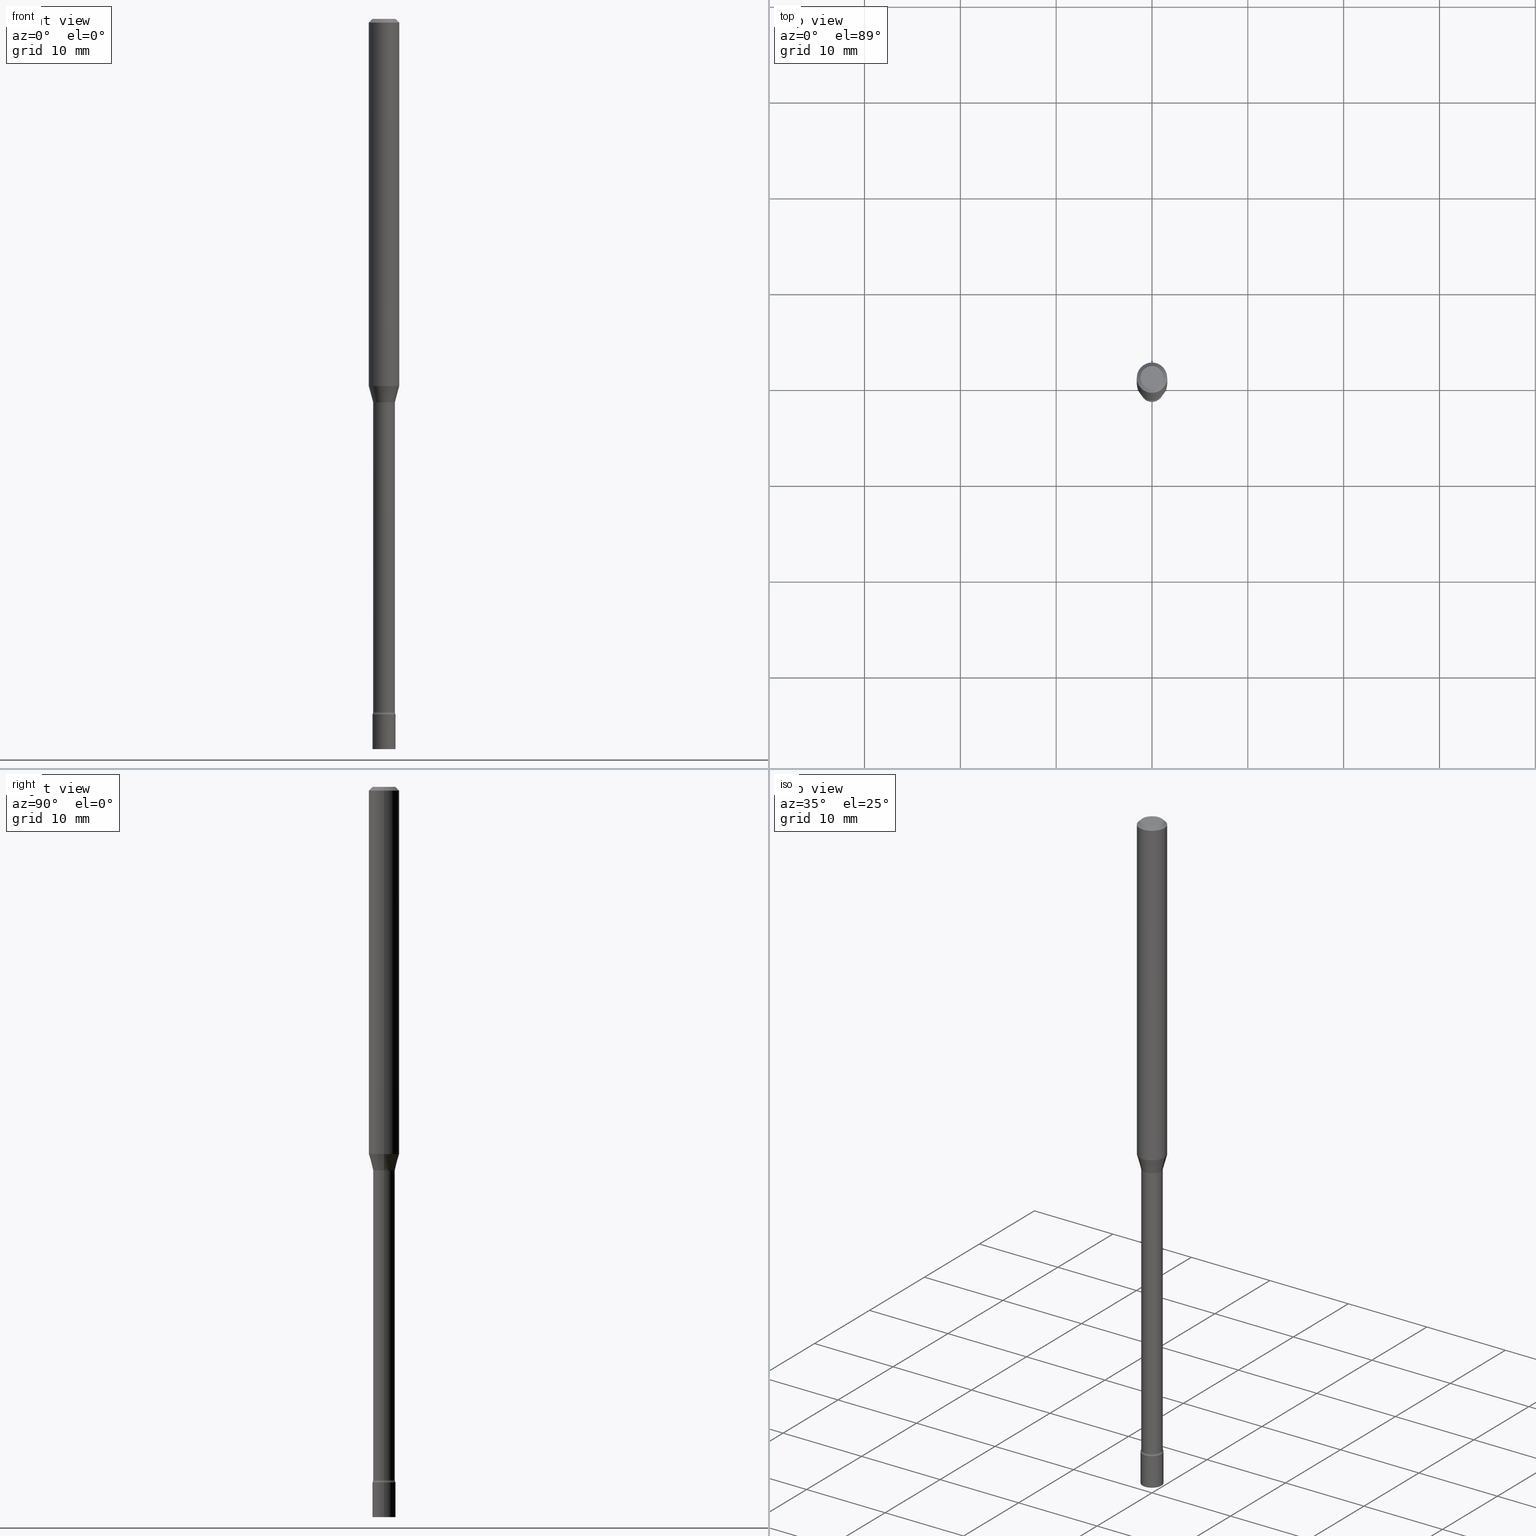
[diagram: canonical four-view strip — front | top / right | iso, engineering-drawing reading convention]
A machine part, canonical four-view strip (front | top / right | iso — engineering-drawing reading convention). The complete STEP part file that produces these views, byte-faithful:
ISO-10303-21;
HEADER;
FILE_DESCRIPTION (( 'STEP AP203' ),
    '1' );
FILE_NAME ('09750.STEP',
    '2024-03-09T01:38:15',
    ( '' ),
    ( '' ),
    'SwSTEP 2.0',
    'SolidWorks 2023',
    '' );
FILE_SCHEMA (( 'CONFIG_CONTROL_DESIGN' ));
ENDSEC;

DATA;
#1 = DIRECTION ( 'NONE',  ( 1.000000000000000000, -6.982962677686266711E-15, 4.876176775795935793E-29 ) ) ;
#2 = VECTOR ( 'NONE', #70, 39.37007874015748143 ) ;
#3 = APPROVAL_DATE_TIME ( #361, #476 ) ;
#4 = ADVANCED_FACE ( 'NONE', ( #273 ), #167, .T. ) ;
#5 = DIRECTION ( 'NONE',  ( -2.445468806185136597E-29, 3.491481338843145583E-15, 1.000000000000000000 ) ) ;
#6 = LINE ( 'NONE', #321, #9 ) ;
#7 = DIRECTION ( 'NONE',  ( -2.445468806185136597E-29, 3.491481338843145583E-15, 1.000000000000000000 ) ) ;
#8 = EDGE_CURVE ( 'NONE', #225, #56, #464, .T. ) ;
#9 = VECTOR ( 'NONE', #483, 39.37007874015748143 ) ;
#10 = AXIS2_PLACEMENT_3D ( 'NONE', #445, #135, #331 ) ;
#11 = FACE_OUTER_BOUND ( 'NONE', #391, .T. ) ;
#12 = ORIENTED_EDGE ( 'NONE', *, *, #455, .T. ) ;
#13 = CALENDAR_DATE ( 2024, 8, 3 ) ;
#14 = DIMENSIONAL_EXPONENTS ( 1.000000000000000000, 0.000000000000000000, 0.000000000000000000, 0.000000000000000000, 0.000000000000000000, 0.000000000000000000, 0.000000000000000000 ) ;
#15 = CARTESIAN_POINT ( 'NONE',  ( 0.04749999999999999362, -1.030685291226496570E-14, -2.857000000000000206 ) ) ;
#16 = DIRECTION ( 'NONE',  ( -2.445468806185136597E-29, 3.491481338843145583E-15, 1.000000000000000000 ) ) ;
#17 = PERSON_AND_ORGANIZATION ( #261, #109 ) ;
#18 = LENGTH_MEASURE_WITH_UNIT ( LENGTH_MEASURE( 0.02539999999999999897 ), #339 );
#19 = DIRECTION ( 'NONE',  ( 1.000000000000000000, -6.982962677686258033E-15, 0.000000000000000000 ) ) ;
#20 = VECTOR ( 'NONE', #442, 39.37007874015748143 ) ;
#21 = AXIS2_PLACEMENT_3D ( 'NONE', #256, #96, #212 ) ;
#22 =( CONVERSION_BASED_UNIT ( 'INCH', #18 ) LENGTH_UNIT ( ) NAMED_UNIT ( #14 ) );
#23 = CARTESIAN_POINT ( 'NONE',  ( -0.04464999999999999525, -7.407956464872171030E-15, -1.576974787463811367 ) ) ;
#24 = ORIENTED_EDGE ( 'NONE', *, *, #156, .T. ) ;
#25 = DIRECTION ( 'NONE',  ( -0.7071067811865475727, 2.468850131082257455E-15, -0.7071067811865474617 ) ) ;
#26 = DIRECTION ( 'NONE',  ( 1.000000000000000000, -6.982962677686265922E-15, 4.876176775795935793E-29 ) ) ;
#27 = LINE ( 'NONE', #183, #2 ) ;
#28 = ORIENTED_EDGE ( 'NONE', *, *, #239, .T. ) ;
#29 = EDGE_CURVE ( 'NONE', #434, #263, #116, .T. ) ;
#30 = AXIS2_PLACEMENT_3D ( 'NONE', #58, #46, #365 ) ;
#31 = DIRECTION ( 'NONE',  ( 1.000000000000000000, -6.982962677686266711E-15, 4.876176775795935793E-29 ) ) ;
#32 = LOCAL_TIME ( 20, 38, 15.00000000000000000, #505 ) ;
#33 = ORIENTED_EDGE ( 'NONE', *, *, #248, .F. ) ;
#34 = CARTESIAN_POINT ( 'NONE',  ( 3.688703312822403252E-29, -5.266490723036150477E-15, -1.508382893084896148 ) ) ;
#35 = ORIENTED_EDGE ( 'NONE', *, *, #418, .F. ) ;
#36 = ORIENTED_EDGE ( 'NONE', *, *, #328, .F. ) ;
#37 = EDGE_CURVE ( 'NONE', #225, #263, #6, .T. ) ;
#38 = ORIENTED_EDGE ( 'NONE', *, *, #462, .F. ) ;
#39 = ADVANCED_FACE ( 'NONE', ( #82 ), #45, .F. ) ;
#40 = DIRECTION ( 'NONE',  ( -1.000000000000000000, 6.982962677686265922E-15, -4.876176775795935793E-29 ) ) ;
#41 = DATE_TIME_ROLE ( 'creation_date' ) ;
#42 = CARTESIAN_POINT ( 'NONE',  ( 3.856442650883186298E-29, -5.505978042256032480E-15, -1.576974787463811367 ) ) ;
#43 = AXIS2_PLACEMENT_3D ( 'NONE', #459, #7, #282 ) ;
#44 = CARTESIAN_POINT ( 'NONE',  ( -0.06250000000000000000, -4.822401513186087072E-15, -1.508382893084896148 ) ) ;
#45 = PLANE ( 'NONE',  #506 ) ;
#46 = DIRECTION ( 'NONE',  ( -2.445468806185136597E-29, 3.491481338843145583E-15, 1.000000000000000000 ) ) ;
#47 = VERTEX_POINT ( 'NONE', #165 ) ;
#48 = CLOSED_SHELL ( 'NONE', ( #302, #366, #472, #78 ) ) ;
#49 = CIRCLE ( 'NONE', #441, 0.04749999999999999362 ) ;
#50 = COORDINATED_UNIVERSAL_TIME_OFFSET ( 5, 0, .BEHIND. ) ;
#51 = TOROIDAL_SURFACE ( 'NONE', #380, 0.05965000000000016817, 0.01499999999999997689 ) ;
#52 = DIRECTION ( 'NONE',  ( 0.000000000000000000, 0.000000000000000000, 1.000000000000000000 ) ) ;
#53 = DIRECTION ( 'NONE',  ( 1.000000000000000000, -6.982962677686279332E-15, 0.000000000000000000 ) ) ;
#54 = CARTESIAN_POINT ( 'NONE',  ( 3.856442650883186298E-29, -5.505978042256032480E-15, -1.576974787463811367 ) ) ;
#55 = CARTESIAN_POINT ( 'NONE',  ( 3.846948642364512994E-29, -5.492423114264342682E-15, -1.573092501787273445 ) ) ;
#56 = VERTEX_POINT ( 'NONE', #275 ) ;
#57 = APPROVAL_ROLE ( '' ) ;
#58 = CARTESIAN_POINT ( 'NONE',  ( 3.688703312822403252E-29, -5.266490723036150477E-15, -1.508382893084896148 ) ) ;
#59 = ORIENTED_EDGE ( 'NONE', *, *, #447, .T. ) ;
#60 = EDGE_CURVE ( 'NONE', #141, #47, #314, .T. ) ;
#61 = AXIS2_PLACEMENT_3D ( 'NONE', #34, #229, #392 ) ;
#62 = PLANE ( 'NONE',  #244 ) ;
#63 = PRODUCT_DEFINITION ( 'UNKNOWN', '', #203, #327 ) ;
#64 = AXIS2_PLACEMENT_3D ( 'NONE', #413, #52, #488 ) ;
#65 = CARTESIAN_POINT ( 'NONE',  ( 7.070806723891919892E-46, -1.009523804376275404E-31, -2.891391092786900929E-17 ) ) ;
#66 = CARTESIAN_POINT ( 'NONE',  ( 6.965192939722619373E-29, -9.944449550522084107E-15, -2.848203551853162985 ) ) ;
#67 = CARTESIAN_POINT ( 'NONE',  ( 7.336406418555409790E-29, -1.047444401652943635E-14, -3.000000000000000444 ) ) ;
#68 = ADVANCED_FACE ( 'NONE', ( #90 ), #322, .F. ) ;
#69 = ORIENTED_EDGE ( 'NONE', *, *, #8, .T. ) ;
#70 = DIRECTION ( 'NONE',  ( -2.445468806185136877E-29, 3.491481338843145188E-15, 1.000000000000000000 ) ) ;
#71 = EDGE_LOOP ( 'NONE', ( #374, #69, #492, #477 ) ) ;
#72 = AXIS2_PLACEMENT_3D ( 'NONE', #153, #426, #432 ) ;
#73 = CARTESIAN_POINT ( 'NONE',  ( 3.668203209277712094E-31, -5.237222008264728876E-17, -0.01500000000000003067 ) ) ;
#74 =( GEOMETRIC_REPRESENTATION_CONTEXT ( 3 ) GLOBAL_UNCERTAINTY_ASSIGNED_CONTEXT ( ( #237 ) ) GLOBAL_UNIT_ASSIGNED_CONTEXT ( ( #22, #446, #503 ) ) REPRESENTATION_CONTEXT ( 'NONE', 'WORKASPACE' ) );
#75 = ORIENTED_EDGE ( 'NONE', *, *, #60, .T. ) ;
#76 = CARTESIAN_POINT ( 'NONE',  ( 0.04465000000000009933, -3.117892835586925182E-16, 2.177212930392890079E-30 ) ) ;
#77 = EDGE_LOOP ( 'NONE', ( #187, #433 ) ) ;
#78 = ADVANCED_FACE ( 'NONE', ( #200 ), #363, .T. ) ;
#79 = ORIENTED_EDGE ( 'NONE', *, *, #494, .T. ) ;
#80 = VECTOR ( 'NONE', #104, 39.37007874015748143 ) ;
#81 = DIRECTION ( 'NONE',  ( 1.000000000000000000, -6.982962677686272233E-15, 4.883557194083114583E-29 ) ) ;
#82 = FACE_OUTER_BOUND ( 'NONE', #77, .T. ) ;
#83 = ADVANCED_FACE ( 'NONE', ( #243 ), #234, .T. ) ;
#84 = DIRECTION ( 'NONE',  ( 1.000000000000000000, -6.982962677686258822E-15, 0.000000000000000000 ) ) ;
#85 = APPROVAL ( #285, 'UNSPECIFIED' ) ;
#86 = CIRCLE ( 'NONE', #258, 0.04749999999999999362 ) ;
#87 = DIRECTION ( 'NONE',  ( 7.105427357601001859E-15, 1.000000000000000000, -3.491481338843145583E-15 ) ) ;
#88 = AXIS2_PLACEMENT_3D ( 'NONE', #257, #100, #137 ) ;
#89 = EDGE_CURVE ( 'NONE', #296, #112, #161, .T. ) ;
#90 = FACE_OUTER_BOUND ( 'NONE', #198, .T. ) ;
#91 = EDGE_CURVE ( 'NONE', #337, #460, #86, .T. ) ;
#92 = APPROVAL ( #453, 'UNSPECIFIED' ) ;
#93 = CARTESIAN_POINT ( 'NONE',  ( 6.986704379270935831E-29, -9.975162185074867400E-15, -2.857000000000000206 ) ) ;
#94 = EDGE_LOOP ( 'NONE', ( #351, #24, #114, #393 ) ) ;
#95 = DIRECTION ( 'NONE',  ( 2.438088387897960049E-29, -3.491481338843145188E-15, -1.000000000000000000 ) ) ;
#96 = DIRECTION ( 'NONE',  ( -6.982962677686266711E-15, -1.000000000000000000, 3.491481338843145583E-15 ) ) ;
#97 = VERTEX_POINT ( 'NONE', #129 ) ;
#98 = AXIS2_PLACEMENT_3D ( 'NONE', #489, #350, #181 ) ;
#99 = CARTESIAN_POINT ( 'NONE',  ( 0.06250000000000000000, -4.811533449433680977E-16, -0.01500000000000003067 ) ) ;
#100 = DIRECTION ( 'NONE',  ( 2.445468806185136597E-29, -3.491481338843145583E-15, -1.000000000000000000 ) ) ;
#101 = APPLICATION_PROTOCOL_DEFINITION ( 'international standard', 'config_control_design', 1994, #219 ) ;
#102 = DIRECTION ( 'NONE',  ( 1.000000000000000000, -6.982962677686258033E-15, 0.000000000000000000 ) ) ;
#103 = ADVANCED_FACE ( 'NONE', ( #236 ), #367, .F. ) ;
#104 = DIRECTION ( 'NONE',  ( 0.7071067811865475727, -7.319954787623256045E-15, -0.7071067811865474617 ) ) ;
#105 = CARTESIAN_POINT ( 'NONE',  ( 3.846948642364512994E-29, -5.492423114264342682E-15, -1.573092501787273445 ) ) ;
#106 = VERTEX_POINT ( 'NONE', #278 ) ;
#107 = AXIS2_PLACEMENT_3D ( 'NONE', #180, #249, #452 ) ;
#108 = DIRECTION ( 'NONE',  ( 1.000000000000000000, -6.982962677686258822E-15, 0.000000000000000000 ) ) ;
#109 = ORGANIZATION ( 'UNSPECIFIED', 'UNSPECIFIED', '' ) ;
#110 = EDGE_CURVE ( 'NONE', #296, #263, #317, .T. ) ;
#111 = DIRECTION ( 'NONE',  ( -2.445468806185136877E-29, 3.491481338843145188E-15, 1.000000000000000000 ) ) ;
#112 = VERTEX_POINT ( 'NONE', #44 ) ;
#113 = DIRECTION ( 'NONE',  ( -2.445468806185136597E-29, 3.491481338843145583E-15, 1.000000000000000000 ) ) ;
#114 = ORIENTED_EDGE ( 'NONE', *, *, #406, .F. ) ;
#115 = ORIENTED_EDGE ( 'NONE', *, *, #335, .T. ) ;
#116 = CIRCLE ( 'NONE', #240, 0.04464999999999999525 ) ;
#117 = CLOSED_SHELL ( 'NONE', ( #103, #404, #171, #182, #291, #150, #166, #83, #4, #482, #39, #502, #359, #68 ) ) ;
#118 = AXIS2_PLACEMENT_3D ( 'NONE', #148, #305, #31 ) ;
#119 = DIRECTION ( 'NONE',  ( 1.000000000000000000, -6.982962677686261977E-15, 0.000000000000000000 ) ) ;
#120 = ORIENTED_EDGE ( 'NONE', *, *, #418, .T. ) ;
#121 = ORIENTED_EDGE ( 'NONE', *, *, #110, .T. ) ;
#122 = DIRECTION ( 'NONE',  ( -2.445468806185136597E-29, 3.491481338843145583E-15, 1.000000000000000000 ) ) ;
#123 = AXIS2_PLACEMENT_3D ( 'NONE', #480, #405, #439 ) ;
#124 = AXIS2_PLACEMENT_3D ( 'NONE', #382, #186, #270 ) ;
#125 = DIRECTION ( 'NONE',  ( -2.445468806185136597E-29, 3.491481338843145583E-15, 1.000000000000000000 ) ) ;
#126 = AXIS2_PLACEMENT_3D ( 'NONE', #495, #419, #144 ) ;
#127 = ORIENTED_EDGE ( 'NONE', *, *, #328, .T. ) ;
#128 = PRODUCT_RELATED_PRODUCT_CATEGORY ( 'detail', '', ( #444 ) ) ;
#129 = CARTESIAN_POINT ( 'NONE',  ( 0.04749999999999997280, -1.030685291226496570E-14, -2.857000000000000206 ) ) ;
#130 = CARTESIAN_POINT ( 'NONE',  ( 0.04516111260566398056, -5.807781478072481099E-15, -1.573092501787273445 ) ) ;
#131 = AXIS2_PLACEMENT_3D ( 'NONE', #421, #207, #53 ) ;
#132 = CARTESIAN_POINT ( 'NONE',  ( 0.04516111260566398056, -5.807781478072481099E-15, -1.573092501787273445 ) ) ;
#133 = EDGE_CURVE ( 'NONE', #230, #394, #389, .T. ) ;
#134 = MECHANICAL_CONTEXT ( 'NONE', #357, 'mechanical' ) ;
#135 = DIRECTION ( 'NONE',  ( -2.445468806185136597E-29, 3.491481338843145583E-15, 1.000000000000000000 ) ) ;
#136 = ORIENTED_EDGE ( 'NONE', *, *, #423, .F. ) ;
#137 = DIRECTION ( 'NONE',  ( -1.000000000000000000, 6.982962677686266711E-15, 0.000000000000000000 ) ) ;
#138 = ORIENTED_EDGE ( 'NONE', *, *, #515, .F. ) ;
#139 = CONICAL_SURFACE ( 'NONE', #323, 0.04516111260566398056, 0.2617993877991502960 ) ;
#140 = CARTESIAN_POINT ( 'NONE',  ( 0.04749999999999999362, -4.035134999187579609E-16, -2.891391092786643933E-17 ) ) ;
#141 = VERTEX_POINT ( 'NONE', #132 ) ;
#142 = FACE_OUTER_BOUND ( 'NONE', #208, .T. ) ;
#143 = DIRECTION ( 'NONE',  ( 1.000000000000000000, -6.982962677686267499E-15, 4.876681293081646444E-29 ) ) ;
#144 = DIRECTION ( 'NONE',  ( 1.000000000000000000, -6.982962677686267499E-15, 4.876176775795935793E-29 ) ) ;
#145 = CARTESIAN_POINT ( 'NONE',  ( 0.06250000000000000000, -4.888073874380389458E-16, -0.01500000000000003067 ) ) ;
#146 = EDGE_LOOP ( 'NONE', ( #498, #475, #250, #28 ) ) ;
#147 = AXIS2_PLACEMENT_3D ( 'NONE', #65, #172, #143 ) ;
#148 = CARTESIAN_POINT ( 'NONE',  ( 0.000000000000000000, 0.000000000000000000, 0.000000000000000000 ) ) ;
#149 = ORIENTED_EDGE ( 'NONE', *, *, #383, .T. ) ;
#150 = ADVANCED_FACE ( 'NONE', ( #173 ), #197, .T. ) ;
#151 = CARTESIAN_POINT ( 'NONE',  ( -0.04749999999999999362, -9.887295301316104383E-15, -2.857000000000000206 ) ) ;
#152 = ORIENTED_EDGE ( 'NONE', *, *, #245, .T. ) ;
#153 = CARTESIAN_POINT ( 'NONE',  ( 0.000000000000000000, 0.000000000000000000, 0.000000000000000000 ) ) ;
#154 = EDGE_LOOP ( 'NONE', ( #36, #370 ) ) ;
#155 = CIRCLE ( 'NONE', #479, 0.04516111260566398056 ) ;
#156 = EDGE_CURVE ( 'NONE', #112, #299, #448, .T. ) ;
#157 = ORIENTED_EDGE ( 'NONE', *, *, #89, .T. ) ;
#158 = CC_DESIGN_PERSON_AND_ORGANIZATION_ASSIGNMENT ( #461, #215, ( #203 ) ) ;
#159 = DIRECTION ( 'NONE',  ( 1.000000000000000000, -6.982962677686265922E-15, 4.876176775795935793E-29 ) ) ;
#160 = EDGE_CURVE ( 'NONE', #296, #141, #155, .T. ) ;
#161 = LINE ( 'NONE', #164, #347 ) ;
#162 = CONICAL_SURFACE ( 'NONE', #88, 0.06250000000000000000, 0.7853981633974483900 ) ;
#163 = DIRECTION ( 'NONE',  ( 1.000000000000000000, -6.982962677686272233E-15, 4.883557194083114583E-29 ) ) ;
#164 = CARTESIAN_POINT ( 'NONE',  ( -0.04516111260566398056, -5.171534109256358073E-15, -1.573092501787273445 ) ) ;
#165 = CARTESIAN_POINT ( 'NONE',  ( 0.06250000000000000000, -5.702925890391542147E-15, -1.508382893084896148 ) ) ;
#166 = ADVANCED_FACE ( 'NONE', ( #501 ), #139, .T. ) ;
#167 = CONICAL_SURFACE ( 'NONE', #123, 0.06250000000000000000, 0.7853981633974483900 ) ;
#168 = FACE_OUTER_BOUND ( 'NONE', #94, .T. ) ;
#169 = SHAPE_DEFINITION_REPRESENTATION ( #284, #254 ) ;
#170 = CYLINDRICAL_SURFACE ( 'NONE', #98, 0.04749999999999999362 ) ;
#171 = ADVANCED_FACE ( 'NONE', ( #417 ), #274, .F. ) ;
#172 = DIRECTION ( 'NONE',  ( -2.445468806185136597E-29, 3.491481338843145583E-15, 1.000000000000000000 ) ) ;
#173 = FACE_OUTER_BOUND ( 'NONE', #388, .T. ) ;
#174 = AXIS2_PLACEMENT_3D ( 'NONE', #246, #318, #40 ) ;
#175 = AXIS2_PLACEMENT_3D ( 'NONE', #264, #387, #428 ) ;
#176 = AXIS2_PLACEMENT_3D ( 'NONE', #93, #16, #286 ) ;
#177 = PERSON_AND_ORGANIZATION ( #261, #109 ) ;
#178 = CC_DESIGN_APPROVAL ( #476, ( #203 ) ) ;
#179 = LINE ( 'NONE', #99, #80 ) ;
#180 = CARTESIAN_POINT ( 'NONE',  ( 6.986704379270935831E-29, -9.975162185074867400E-15, -2.857000000000000206 ) ) ;
#181 = DIRECTION ( 'NONE',  ( 1.000000000000000000, -6.982962677686267499E-15, 4.876176775795935793E-29 ) ) ;
#182 = ADVANCED_FACE ( 'NONE', ( #414 ), #162, .T. ) ;
#183 = CARTESIAN_POINT ( 'NONE',  ( 0.04749999999999999362, -3.316907271900976589E-16, 2.316183968503069081E-30 ) ) ;
#184 = EDGE_LOOP ( 'NONE', ( #280, #425, #512, #228 ) ) ;
#185 = AXIS2_PLACEMENT_3D ( 'NONE', #298, #113, #390 ) ;
#186 = DIRECTION ( 'NONE',  ( -2.445468806185136597E-29, 3.491481338843145583E-15, 1.000000000000000000 ) ) ;
#187 = ORIENTED_EDGE ( 'NONE', *, *, #239, .F. ) ;
#188 = CYLINDRICAL_SURFACE ( 'NONE', #72, 0.04465000000000009933 ) ;
#189 = ORIENTED_EDGE ( 'NONE', *, *, #368, .T. ) ;
#190 = ORIENTED_EDGE ( 'NONE', *, *, #368, .F. ) ;
#191 = CIRCLE ( 'NONE', #185, 0.04516111260566398056 ) ;
#192 = CC_DESIGN_APPROVAL ( #85, ( #63 ) ) ;
#193 = ORIENTED_EDGE ( 'NONE', *, *, #91, .F. ) ;
#194 = DIRECTION ( 'NONE',  ( 7.105427357601001859E-15, 1.000000000000000000, -3.491481338843145583E-15 ) ) ;
#195 = CARTESIAN_POINT ( 'NONE',  ( 3.856442650883186298E-29, -5.505978042256032480E-15, -1.576974787463811367 ) ) ;
#196 = APPROVAL_STATUS ( 'not_yet_approved' ) ;
#197 = CONICAL_SURFACE ( 'NONE', #311, 0.04516111260566398056, 0.2617993877991502960 ) ;
#198 = EDGE_LOOP ( 'NONE', ( #309, #35, #152, #292 ) ) ;
#199 = EDGE_CURVE ( 'NONE', #47, #112, #349, .T. ) ;
#200 = FACE_OUTER_BOUND ( 'NONE', #154, .T. ) ;
#201 = ORIENTED_EDGE ( 'NONE', *, *, #245, .F. ) ;
#202 = DIRECTION ( 'NONE',  ( 1.000000000000000000, -6.982962677686261977E-15, 0.000000000000000000 ) ) ;
#203 = PRODUCT_DEFINITION_FORMATION_WITH_SPECIFIED_SOURCE ( 'ANY', '', #444, .NOT_KNOWN. ) ;
#204 = DIRECTION ( 'NONE',  ( -2.445468806185136597E-29, 3.491481338843145583E-15, 1.000000000000000000 ) ) ;
#205 = CC_DESIGN_DATE_AND_TIME_ASSIGNMENT ( #338, #457, ( #451 ) ) ;
#206 = DIRECTION ( 'NONE',  ( -2.445468806185136597E-29, 3.491481338843145583E-15, 1.000000000000000000 ) ) ;
#207 = DIRECTION ( 'NONE',  ( -6.982962677686266711E-15, -1.000000000000000000, 3.491481338843145583E-15 ) ) ;
#208 = EDGE_LOOP ( 'NONE', ( #268, #353 ) ) ;
#209 = EDGE_CURVE ( 'NONE', #47, #408, #456, .T. ) ;
#210 = CALENDAR_DATE ( 2024, 8, 3 ) ;
#211 = COORDINATED_UNIVERSAL_TIME_OFFSET ( 5, 0, .BEHIND. ) ;
#212 = DIRECTION ( 'NONE',  ( 1.000000000000000000, -6.982962677686255667E-15, 0.000000000000000000 ) ) ;
#213 = ORIENTED_EDGE ( 'NONE', *, *, #383, .F. ) ;
#214 = AXIS2_PLACEMENT_3D ( 'NONE', #352, #511, #513 ) ;
#215 = PERSON_AND_ORGANIZATION_ROLE ( 'design_supplier' ) ;
#216 = DIRECTION ( 'NONE',  ( 1.000000000000000000, -6.982962677686249356E-15, 0.000000000000000000 ) ) ;
#217 = CC_DESIGN_PERSON_AND_ORGANIZATION_ASSIGNMENT ( #454, #371, ( #444 ) ) ;
#218 = DIRECTION ( 'NONE',  ( -2.445468806185136597E-29, 3.491481338843145583E-15, 1.000000000000000000 ) ) ;
#219 = APPLICATION_CONTEXT ( 'configuration controlled 3d designs of mechanical parts and assemblies' ) ;
#220 = FACE_OUTER_BOUND ( 'NONE', #184, .T. ) ;
#221 = MANIFOLD_SOLID_BREP ( 'Body-Move/Copy2[1]', #48 ) ;
#222 = ORIENTED_EDGE ( 'NONE', *, *, #133, .F. ) ;
#223 = PERSON_AND_ORGANIZATION ( #261, #109 ) ;
#224 = FACE_OUTER_BOUND ( 'NONE', #231, .T. ) ;
#225 = VERTEX_POINT ( 'NONE', #253 ) ;
#226 = AXIS2_PLACEMENT_3D ( 'NONE', #308, #466, #26 ) ;
#227 = CARTESIAN_POINT ( 'NONE',  ( -0.04749999999999999362, -9.887295301316104383E-15, -3.000000000000000444 ) ) ;
#228 = ORIENTED_EDGE ( 'NONE', *, *, #494, .F. ) ;
#229 = DIRECTION ( 'NONE',  ( -2.445468806185136597E-29, 3.491481338843145583E-15, 1.000000000000000000 ) ) ;
#230 = VERTEX_POINT ( 'NONE', #140 ) ;
#231 = EDGE_LOOP ( 'NONE', ( #12, #469, #399, #136 ) ) ;
#232 = VECTOR ( 'NONE', #411, 39.37007874015748143 ) ;
#233 = LOCAL_TIME ( 20, 38, 15.00000000000000000, #211 ) ;
#234 = CYLINDRICAL_SURFACE ( 'NONE', #310, 0.06250000000000000000 ) ;
#235 = EDGE_CURVE ( 'NONE', #106, #97, #378, .T. ) ;
#236 = FACE_OUTER_BOUND ( 'NONE', #271, .T. ) ;
#237 = UNCERTAINTY_MEASURE_WITH_UNIT (LENGTH_MEASURE( 1.000000000000000082E-05 ), #22, 'distance_accuracy_value', 'NONE');
#238 = CARTESIAN_POINT ( 'NONE',  ( -0.05965000000000016817, -9.520610808641182904E-15, -2.848203551853162985 ) ) ;
#239 = EDGE_CURVE ( 'NONE', #97, #56, #287, .T. ) ;
#240 = AXIS2_PLACEMENT_3D ( 'NONE', #438, #481, #84 ) ;
#241 = AXIS2_PLACEMENT_3D ( 'NONE', #440, #87, #403 ) ;
#242 = LOCAL_TIME ( 20, 38, 15.00000000000000000, #50 ) ;
#243 = FACE_OUTER_BOUND ( 'NONE', #348, .T. ) ;
#244 = AXIS2_PLACEMENT_3D ( 'NONE', #463, #95, #490 ) ;
#245 = EDGE_CURVE ( 'NONE', #141, #434, #436, .T. ) ;
#246 = CARTESIAN_POINT ( 'NONE',  ( 3.316907271901709243E-16, 0.04749999999998952283, -3.000000000000000444 ) ) ;
#247 = PERSON_AND_ORGANIZATION_ROLE ( 'classification_officer' ) ;
#248 = EDGE_CURVE ( 'NONE', #394, #230, #516, .T. ) ;
#249 = DIRECTION ( 'NONE',  ( -2.445468806185136597E-29, 3.491481338843145583E-15, 1.000000000000000000 ) ) ;
#250 = ORIENTED_EDGE ( 'NONE', *, *, #235, .T. ) ;
#251 = CIRCLE ( 'NONE', #107, 0.04749999999999999362 ) ;
#252 = LINE ( 'NONE', #344, #422 ) ;
#253 = CARTESIAN_POINT ( 'NONE',  ( -0.04465000000000018954, -9.632423302297009755E-15, -2.848203551853162985 ) ) ;
#254 = ADVANCED_BREP_SHAPE_REPRESENTATION ( '09750', ( #221, #397, #64 ), #74 ) ;
#255 = CARTESIAN_POINT ( 'NONE',  ( 0.04749999999999999362, -1.080613474371953465E-14, -3.000000000000000444 ) ) ;
#256 = CARTESIAN_POINT ( 'NONE',  ( 0.05965000000000000163, -5.922511765980018220E-15, -1.576974787463811367 ) ) ;
#257 = CARTESIAN_POINT ( 'NONE',  ( 3.668203209277712094E-31, -5.237222008264728876E-17, -0.01500000000000003067 ) ) ;
#258 = AXIS2_PLACEMENT_3D ( 'NONE', #478, #125, #319 ) ;
#259 = ORIENTED_EDGE ( 'NONE', *, *, #431, .F. ) ;
#260 = CIRCLE ( 'NONE', #300, 0.04465000000000018954 ) ;
#261 = PERSON ( 'UNSPECIFIED', 'UNSPECIFIED', 'UNSPECIFIED', ('UNSPECIFIED'), ('UNSPECIFIED'), ('UNSPECIFIED') ) ;
#262 = CARTESIAN_POINT ( 'NONE',  ( 0.04464999999999999525, -5.817767325814724061E-15, -1.576974787463811367 ) ) ;
#263 = VERTEX_POINT ( 'NONE', #23 ) ;
#264 = CARTESIAN_POINT ( 'NONE',  ( 3.668203209277712094E-31, -5.237222008264728876E-17, -0.01500000000000003067 ) ) ;
#265 = EDGE_CURVE ( 'NONE', #460, #337, #251, .T. ) ;
#266 = ORIENTED_EDGE ( 'NONE', *, *, #515, .T. ) ;
#267 = CYLINDRICAL_SURFACE ( 'NONE', #118, 0.04465000000000009933 ) ;
#268 = ORIENTED_EDGE ( 'NONE', *, *, #248, .T. ) ;
#269 = AXIS2_PLACEMENT_3D ( 'NONE', #195, #360, #163 ) ;
#270 = DIRECTION ( 'NONE',  ( 1.000000000000000000, -6.982962677686249356E-15, 0.000000000000000000 ) ) ;
#271 = EDGE_LOOP ( 'NONE', ( #364, #121, #79, #201 ) ) ;
#272 = ORIENTED_EDGE ( 'NONE', *, *, #462, .T. ) ;
#273 = FACE_OUTER_BOUND ( 'NONE', #429, .T. ) ;
#274 = TOROIDAL_SURFACE ( 'NONE', #43, 0.05965000000000016817, 0.01499999999999997689 ) ;
#275 = CARTESIAN_POINT ( 'NONE',  ( -0.04749999999999997280, -9.637654385588820695E-15, -2.857000000000000206 ) ) ;
#276 = PERSON_AND_ORGANIZATION ( #261, #109 ) ;
#277 = EDGE_LOOP ( 'NONE', ( #190, #115, #149, #193 ) ) ;
#278 = CARTESIAN_POINT ( 'NONE',  ( 0.04465000000000018954, -1.025623883408077648E-14, -2.848203551853162985 ) ) ;
#279 = CIRCLE ( 'NONE', #124, 0.04465000000000018954 ) ;
#280 = ORIENTED_EDGE ( 'NONE', *, *, #37, .F. ) ;
#281 = CALENDAR_DATE ( 2024, 8, 3 ) ;
#282 = DIRECTION ( 'NONE',  ( 1.000000000000000000, -6.982962677686261189E-15, 4.883557194083110659E-29 ) ) ;
#283 = CARTESIAN_POINT ( 'NONE',  ( 3.846948642364512994E-29, -5.492423114264342682E-15, -1.573092501787273445 ) ) ;
#284 = PRODUCT_DEFINITION_SHAPE ( 'NONE', 'NONE',  #63 ) ;
#285 = APPROVAL_STATUS ( 'not_yet_approved' ) ;
#286 = DIRECTION ( 'NONE',  ( 1.000000000000000000, -6.982962677686261977E-15, 0.000000000000000000 ) ) ;
#287 = CIRCLE ( 'NONE', #409, 0.04749999999999999362 ) ;
#288 = CC_DESIGN_SECURITY_CLASSIFICATION ( #451, ( #203 ) ) ;
#289 = APPLICATION_PROTOCOL_DEFINITION ( 'international standard', 'config_control_design', 1994, #357 ) ;
#290 = CARTESIAN_POINT ( 'NONE',  ( -0.06250000000000000000, 4.440892098500626162E-16, -3.074334431409316114E-30 ) ) ;
#291 = ADVANCED_FACE ( 'NONE', ( #168 ), #341, .T. ) ;
#292 = ORIENTED_EDGE ( 'NONE', *, *, #29, .T. ) ;
#293 = DIRECTION ( 'NONE',  ( -2.445468806185136597E-29, 3.491481338843145583E-15, 1.000000000000000000 ) ) ;
#294 = DIRECTION ( 'NONE',  ( -2.445468806185136597E-29, 3.491481338843145583E-15, 1.000000000000000000 ) ) ;
#295 = EDGE_CURVE ( 'NONE', #56, #97, #465, .T. ) ;
#296 = VERTEX_POINT ( 'NONE', #407 ) ;
#297 = FACE_OUTER_BOUND ( 'NONE', #277, .T. ) ;
#298 = CARTESIAN_POINT ( 'NONE',  ( 3.846948642364512994E-29, -5.492423114264342682E-15, -1.573092501787273445 ) ) ;
#299 = VERTEX_POINT ( 'NONE', #369 ) ;
#300 = AXIS2_PLACEMENT_3D ( 'NONE', #424, #376, #216 ) ;
#301 = LOCAL_TIME ( 20, 38, 15.00000000000000000, #443 ) ;
#302 = ADVANCED_FACE ( 'NONE', ( #11 ), #170, .T. ) ;
#303 = DIRECTION ( 'NONE',  ( 1.000000000000000000, -6.982962677686266711E-15, 0.000000000000000000 ) ) ;
#304 = ORIENTED_EDGE ( 'NONE', *, *, #89, .F. ) ;
#305 = DIRECTION ( 'NONE',  ( -2.445468806185136597E-29, 3.491481338843145583E-15, 1.000000000000000000 ) ) ;
#306 = VERTEX_POINT ( 'NONE', #227 ) ;
#307 = APPROVAL_DATE_TIME ( #458, #85 ) ;
#308 = CARTESIAN_POINT ( 'NONE',  ( 6.986704379270935831E-29, -9.975162185074867400E-15, -2.857000000000000206 ) ) ;
#309 = ORIENTED_EDGE ( 'NONE', *, *, #110, .F. ) ;
#310 = AXIS2_PLACEMENT_3D ( 'NONE', #358, #5, #1 ) ;
#311 = AXIS2_PLACEMENT_3D ( 'NONE', #283, #294, #19 ) ;
#312 = CC_DESIGN_APPROVAL ( #92, ( #451 ) ) ;
#313 = ORIENTED_EDGE ( 'NONE', *, *, #447, .F. ) ;
#314 = LINE ( 'NONE', #130, #20 ) ;
#315 = DIRECTION ( 'NONE',  ( -0.2588190451025215721, 5.211531920934551831E-15, 0.9659258262890679791 ) ) ;
#316 = DATE_AND_TIME ( #281, #32 ) ;
#317 = CIRCLE ( 'NONE', #241, 0.01500000000000002720 ) ;
#318 = DIRECTION ( 'NONE',  ( 2.438088387897960049E-29, -3.491481338843145188E-15, -1.000000000000000000 ) ) ;
#319 = DIRECTION ( 'NONE',  ( 1.000000000000000000, -6.982962677686261977E-15, 0.000000000000000000 ) ) ;
#320 = APPROVAL_ROLE ( '' ) ;
#321 = CARTESIAN_POINT ( 'NONE',  ( -0.04465000000000009933, 3.172573315168854388E-16, -2.196304517798820251E-30 ) ) ;
#322 = TOROIDAL_SURFACE ( 'NONE', #401, 0.05965000000000000163, 0.01500000000000003240 ) ;
#323 = AXIS2_PLACEMENT_3D ( 'NONE', #55, #372, #102 ) ;
#324 = LOCAL_TIME ( 20, 38, 15.00000000000000000, #412 ) ;
#325 = CARTESIAN_POINT ( 'NONE',  ( 0.000000000000000000, 0.000000000000000000, 0.000000000000000000 ) ) ;
#326 = CARTESIAN_POINT ( 'NONE',  ( 0.06250000000000000000, -4.364351673553916694E-16, 3.047610484872459871E-30 ) ) ;
#327 = DESIGN_CONTEXT ( 'detailed design', #219, 'design' ) ;
#328 = EDGE_CURVE ( 'NONE', #471, #306, #49, .T. ) ;
#329 = CC_DESIGN_DATE_AND_TIME_ASSIGNMENT ( #316, #41, ( #63 ) ) ;
#330 = PERSON_AND_ORGANIZATION ( #261, #109 ) ;
#331 = DIRECTION ( 'NONE',  ( 1.000000000000000000, -6.982962677686267499E-15, 4.876681293081646444E-29 ) ) ;
#332 = EDGE_LOOP ( 'NONE', ( #415, #386 ) ) ;
#333 = PERSON_AND_ORGANIZATION_ROLE ( 'creator' ) ;
#334 = AXIS2_PLACEMENT_3D ( 'NONE', #238, #194, #435 ) ;
#335 = EDGE_CURVE ( 'NONE', #306, #471, #450, .T. ) ;
#336 = DIRECTION ( 'NONE',  ( -2.445468806185136877E-29, 3.491481338843145188E-15, 1.000000000000000000 ) ) ;
#337 = VERTEX_POINT ( 'NONE', #151 ) ;
#338 = DATE_AND_TIME ( #13, #324 ) ;
#339 =( LENGTH_UNIT ( ) NAMED_UNIT ( * ) SI_UNIT ( $, .METRE. ) );
#340 = EDGE_CURVE ( 'NONE', #225, #106, #279, .T. ) ;
#341 = CYLINDRICAL_SURFACE ( 'NONE', #507, 0.06250000000000000000 ) ;
#342 = ORIENTED_EDGE ( 'NONE', *, *, #265, .F. ) ;
#343 = CC_DESIGN_PERSON_AND_ORGANIZATION_ASSIGNMENT ( #519, #333, ( #203 ) ) ;
#344 = CARTESIAN_POINT ( 'NONE',  ( -0.06250000000000000000, 3.840629472727443437E-16, -0.01500000000000003067 ) ) ;
#345 = DIRECTION ( 'NONE',  ( -2.445468806185136597E-29, 3.491481338843145583E-15, 1.000000000000000000 ) ) ;
#346 = FACE_OUTER_BOUND ( 'NONE', #332, .T. ) ;
#347 = VECTOR ( 'NONE', #315, 39.37007874015748143 ) ;
#348 = EDGE_LOOP ( 'NONE', ( #398, #59, #514, #259 ) ) ;
#349 = CIRCLE ( 'NONE', #30, 0.06250000000000000000 ) ;
#350 = DIRECTION ( 'NONE',  ( -2.445468806185136597E-29, 3.491481338843145583E-15, 1.000000000000000000 ) ) ;
#351 = ORIENTED_EDGE ( 'NONE', *, *, #199, .T. ) ;
#352 = CARTESIAN_POINT ( 'NONE',  ( 7.336406418555409790E-29, -1.047444401652943635E-14, -3.000000000000000444 ) ) ;
#353 = ORIENTED_EDGE ( 'NONE', *, *, #133, .T. ) ;
#354 = ORIENTED_EDGE ( 'NONE', *, *, #199, .F. ) ;
#355 = EDGE_LOOP ( 'NONE', ( #304, #400, #75, #313 ) ) ;
#356 = CALENDAR_DATE ( 2024, 8, 3 ) ;
#357 = APPLICATION_CONTEXT ( 'configuration controlled 3d designs of mechanical parts and assemblies' ) ;
#358 = CARTESIAN_POINT ( 'NONE',  ( 0.000000000000000000, 0.000000000000000000, 0.000000000000000000 ) ) ;
#359 = ADVANCED_FACE ( 'NONE', ( #220 ), #188, .T. ) ;
#360 = DIRECTION ( 'NONE',  ( -2.445468806185136597E-29, 3.491481338843145583E-15, 1.000000000000000000 ) ) ;
#361 = DATE_AND_TIME ( #356, #301 ) ;
#362 = APPROVAL_PERSON_ORGANIZATION ( #276, #476, #320 ) ;
#363 = PLANE ( 'NONE',  #174 ) ;
#364 = ORIENTED_EDGE ( 'NONE', *, *, #160, .F. ) ;
#365 = DIRECTION ( 'NONE',  ( 1.000000000000000000, -6.982962677686262766E-15, 0.000000000000000000 ) ) ;
#366 = ADVANCED_FACE ( 'NONE', ( #346 ), #508, .T. ) ;
#367 = TOROIDAL_SURFACE ( 'NONE', #269, 0.05965000000000000163, 0.01500000000000003240 ) ;
#368 = EDGE_CURVE ( 'NONE', #306, #337, #385, .T. ) ;
#369 = CARTESIAN_POINT ( 'NONE',  ( -0.06250000000000000000, -2.215342261709336359E-15, -0.01500000000000003067 ) ) ;
#370 = ORIENTED_EDGE ( 'NONE', *, *, #335, .F. ) ;
#371 = PERSON_AND_ORGANIZATION_ROLE ( 'design_owner' ) ;
#372 = DIRECTION ( 'NONE',  ( -2.445468806185136597E-29, 3.491481338843145583E-15, 1.000000000000000000 ) ) ;
#373 = CARTESIAN_POINT ( 'NONE',  ( 6.986704379270935831E-29, -9.975162185074867400E-15, -2.857000000000000206 ) ) ;
#374 = ORIENTED_EDGE ( 'NONE', *, *, #340, .F. ) ;
#375 = APPROVAL_DATE_TIME ( #499, #92 ) ;
#376 = DIRECTION ( 'NONE',  ( -2.445468806185136597E-29, 3.491481338843145583E-15, 1.000000000000000000 ) ) ;
#377 = CC_DESIGN_PERSON_AND_ORGANIZATION_ASSIGNMENT ( #223, #510, ( #63 ) ) ;
#378 = CIRCLE ( 'NONE', #131, 0.01499999999999997689 ) ;
#379 = DIRECTION ( 'NONE',  ( -2.445468806185136597E-29, 3.491481338843145583E-15, 1.000000000000000000 ) ) ;
#380 = AXIS2_PLACEMENT_3D ( 'NONE', #66, #293, #384 ) ;
#381 = FACE_OUTER_BOUND ( 'NONE', #146, .T. ) ;
#382 = CARTESIAN_POINT ( 'NONE',  ( 6.965192939722619373E-29, -9.944449550522084107E-15, -2.848203551853162985 ) ) ;
#383 = EDGE_CURVE ( 'NONE', #471, #460, #27, .T. ) ;
#384 = DIRECTION ( 'NONE',  ( 1.000000000000000000, -6.982962677686261189E-15, 4.883557194083110659E-29 ) ) ;
#385 = LINE ( 'NONE', #504, #430 ) ;
#386 = ORIENTED_EDGE ( 'NONE', *, *, #91, .T. ) ;
#387 = DIRECTION ( 'NONE',  ( -2.445468806185136597E-29, 3.491481338843145583E-15, 1.000000000000000000 ) ) ;
#388 = EDGE_LOOP ( 'NONE', ( #120, #157, #354, #427 ) ) ;
#389 = CIRCLE ( 'NONE', #147, 0.04749999999999999362 ) ;
#390 = DIRECTION ( 'NONE',  ( 1.000000000000000000, -6.982962677686258033E-15, 0.000000000000000000 ) ) ;
#391 = EDGE_LOOP ( 'NONE', ( #127, #189, #342, #213 ) ) ;
#392 = DIRECTION ( 'NONE',  ( 1.000000000000000000, -6.982962677686262766E-15, 0.000000000000000000 ) ) ;
#393 = ORIENTED_EDGE ( 'NONE', *, *, #209, .F. ) ;
#394 = VERTEX_POINT ( 'NONE', #473 ) ;
#395 = VECTOR ( 'NONE', #336, 39.37007874015748143 ) ;
#396 = CIRCLE ( 'NONE', #410, 0.04464999999999999525 ) ;
#397 = MANIFOLD_SOLID_BREP ( 'Body-Move/Copy2[2]', #117 ) ;
#398 = ORIENTED_EDGE ( 'NONE', *, *, #156, .F. ) ;
#399 = ORIENTED_EDGE ( 'NONE', *, *, #29, .F. ) ;
#400 = ORIENTED_EDGE ( 'NONE', *, *, #160, .T. ) ;
#401 = AXIS2_PLACEMENT_3D ( 'NONE', #42, #122, #81 ) ;
#402 = CIRCLE ( 'NONE', #175, 0.06250000000000000000 ) ;
#403 = DIRECTION ( 'NONE',  ( -1.000000000000000000, 7.105427357600978193E-15, 0.000000000000000000 ) ) ;
#404 = ADVANCED_FACE ( 'NONE', ( #224 ), #267, .T. ) ;
#405 = DIRECTION ( 'NONE',  ( 2.445468806185136597E-29, -3.491481338843145583E-15, -1.000000000000000000 ) ) ;
#406 = EDGE_CURVE ( 'NONE', #408, #299, #420, .T. ) ;
#407 = CARTESIAN_POINT ( 'NONE',  ( -0.04516111260566398056, -4.996967811221223756E-15, -1.573092501787273445 ) ) ;
#408 = VERTEX_POINT ( 'NONE', #145 ) ;
#409 = AXIS2_PLACEMENT_3D ( 'NONE', #373, #379, #202 ) ;
#410 = AXIS2_PLACEMENT_3D ( 'NONE', #54, #206, #108 ) ;
#411 = DIRECTION ( 'NONE',  ( -2.445468806185136877E-29, 3.491481338843145188E-15, 1.000000000000000000 ) ) ;
#412 = COORDINATED_UNIVERSAL_TIME_OFFSET ( 5, 0, .BEHIND. ) ;
#413 = CARTESIAN_POINT ( 'NONE',  ( 0.000000000000000000, 0.000000000000000000, 0.000000000000000000 ) ) ;
#414 = FACE_OUTER_BOUND ( 'NONE', #509, .T. ) ;
#415 = ORIENTED_EDGE ( 'NONE', *, *, #265, .T. ) ;
#416 = CYLINDRICAL_SURFACE ( 'NONE', #126, 0.04749999999999999362 ) ;
#417 = FACE_OUTER_BOUND ( 'NONE', #71, .T. ) ;
#418 = EDGE_CURVE ( 'NONE', #141, #296, #191, .T. ) ;
#419 = DIRECTION ( 'NONE',  ( -2.445468806185136597E-29, 3.491481338843145583E-15, 1.000000000000000000 ) ) ;
#420 = CIRCLE ( 'NONE', #496, 0.06250000000000000000 ) ;
#421 = CARTESIAN_POINT ( 'NONE',  ( 0.05965000000000016817, -1.036098327424607142E-14, -2.848203551853162985 ) ) ;
#422 = VECTOR ( 'NONE', #25, 39.37007874015748143 ) ;
#423 = EDGE_CURVE ( 'NONE', #106, #434, #468, .T. ) ;
#424 = CARTESIAN_POINT ( 'NONE',  ( 6.965192939722619373E-29, -9.944449550522084107E-15, -2.848203551853162985 ) ) ;
#425 = ORIENTED_EDGE ( 'NONE', *, *, #340, .T. ) ;
#426 = DIRECTION ( 'NONE',  ( -2.445468806185136597E-29, 3.491481338843145583E-15, 1.000000000000000000 ) ) ;
#427 = ORIENTED_EDGE ( 'NONE', *, *, #60, .F. ) ;
#428 = DIRECTION ( 'NONE',  ( 1.000000000000000000, -6.982962677686266711E-15, 0.000000000000000000 ) ) ;
#429 = EDGE_LOOP ( 'NONE', ( #38, #33, #266, #467 ) ) ;
#430 = VECTOR ( 'NONE', #111, 39.37007874015748143 ) ;
#431 = EDGE_CURVE ( 'NONE', #299, #408, #402, .T. ) ;
#432 = DIRECTION ( 'NONE',  ( 1.000000000000000000, -6.982962677686266711E-15, 4.876176775795935793E-29 ) ) ;
#433 = ORIENTED_EDGE ( 'NONE', *, *, #295, .F. ) ;
#434 = VERTEX_POINT ( 'NONE', #262 ) ;
#435 = DIRECTION ( 'NONE',  ( -1.000000000000000000, 7.105427357601001859E-15, 0.000000000000000000 ) ) ;
#436 = CIRCLE ( 'NONE', #21, 0.01500000000000002720 ) ;
#437 = APPROVAL_PERSON_ORGANIZATION ( #330, #85, #57 ) ;
#438 = CARTESIAN_POINT ( 'NONE',  ( 3.856442650883186298E-29, -5.505978042256032480E-15, -1.576974787463811367 ) ) ;
#439 = DIRECTION ( 'NONE',  ( -1.000000000000000000, 6.982962677686266711E-15, 0.000000000000000000 ) ) ;
#440 = CARTESIAN_POINT ( 'NONE',  ( -0.05965000000000000163, -5.082139300375132855E-15, -1.576974787463811367 ) ) ;
#441 = AXIS2_PLACEMENT_3D ( 'NONE', #67, #345, #119 ) ;
#442 = DIRECTION ( 'NONE',  ( 0.2588190451025215721, 1.565188264969619995E-15, 0.9659258262890679791 ) ) ;
#443 = COORDINATED_UNIVERSAL_TIME_OFFSET ( 5, 0, .BEHIND. ) ;
#444 = PRODUCT ( '09750', '09750', '', ( #134 ) ) ;
#445 = CARTESIAN_POINT ( 'NONE',  ( 7.070806723891919892E-46, -1.009523804376275404E-31, -2.891391092786900929E-17 ) ) ;
#446 =( NAMED_UNIT ( * ) PLANE_ANGLE_UNIT ( ) SI_UNIT ( $, .RADIAN. ) );
#447 = EDGE_CURVE ( 'NONE', #112, #47, #474, .T. ) ;
#448 = LINE ( 'NONE', #290, #232 ) ;
#449 = APPROVAL_ROLE ( '' ) ;
#450 = CIRCLE ( 'NONE', #214, 0.04749999999999999362 ) ;
#451 = SECURITY_CLASSIFICATION ( '', '', #493 ) ;
#452 = DIRECTION ( 'NONE',  ( 1.000000000000000000, -6.982962677686261977E-15, 0.000000000000000000 ) ) ;
#453 = APPROVAL_STATUS ( 'not_yet_approved' ) ;
#454 = PERSON_AND_ORGANIZATION ( #261, #109 ) ;
#455 = EDGE_CURVE ( 'NONE', #106, #225, #260, .T. ) ;
#456 = LINE ( 'NONE', #326, #395 ) ;
#457 = DATE_TIME_ROLE ( 'classification_date' ) ;
#458 = DATE_AND_TIME ( #500, #233 ) ;
#459 = CARTESIAN_POINT ( 'NONE',  ( 6.965192939722619373E-29, -9.944449550522084107E-15, -2.848203551853162985 ) ) ;
#460 = VERTEX_POINT ( 'NONE', #15 ) ;
#461 = PERSON_AND_ORGANIZATION ( #261, #109 ) ;
#462 = EDGE_CURVE ( 'NONE', #230, #408, #179, .T. ) ;
#463 = CARTESIAN_POINT ( 'NONE',  ( 3.316907271900976096E-16, 0.04749999999999999362, -1.803023190589839165E-16 ) ) ;
#464 = CIRCLE ( 'NONE', #334, 0.01499999999999997689 ) ;
#465 = CIRCLE ( 'NONE', #176, 0.04749999999999999362 ) ;
#466 = DIRECTION ( 'NONE',  ( -2.438088387897960049E-29, 3.491481338843145188E-15, 1.000000000000000000 ) ) ;
#467 = ORIENTED_EDGE ( 'NONE', *, *, #431, .T. ) ;
#468 = LINE ( 'NONE', #76, #484 ) ;
#469 = ORIENTED_EDGE ( 'NONE', *, *, #37, .T. ) ;
#470 = DIRECTION ( 'NONE',  ( -2.445468806185136877E-29, 3.491481338843145188E-15, 1.000000000000000000 ) ) ;
#471 = VERTEX_POINT ( 'NONE', #255 ) ;
#472 = ADVANCED_FACE ( 'NONE', ( #297 ), #416, .T. ) ;
#473 = CARTESIAN_POINT ( 'NONE',  ( -0.04749999999999999362, 3.578768372314209027E-16, -2.891391092787141902E-17 ) ) ;
#474 = CIRCLE ( 'NONE', #61, 0.06250000000000000000 ) ;
#475 = ORIENTED_EDGE ( 'NONE', *, *, #455, .F. ) ;
#476 = APPROVAL ( #196, 'UNSPECIFIED' ) ;
#477 = ORIENTED_EDGE ( 'NONE', *, *, #235, .F. ) ;
#478 = CARTESIAN_POINT ( 'NONE',  ( 6.986704379270935831E-29, -9.975162185074867400E-15, -2.857000000000000206 ) ) ;
#479 = AXIS2_PLACEMENT_3D ( 'NONE', #105, #204, #497 ) ;
#480 = CARTESIAN_POINT ( 'NONE',  ( 3.668203209277712094E-31, -5.237222008264728876E-17, -0.01500000000000003067 ) ) ;
#481 = DIRECTION ( 'NONE',  ( -2.445468806185136597E-29, 3.491481338843145583E-15, 1.000000000000000000 ) ) ;
#482 = ADVANCED_FACE ( 'NONE', ( #142 ), #62, .F. ) ;
#483 = DIRECTION ( 'NONE',  ( -2.445468806185136877E-29, 3.491481338843145188E-15, 1.000000000000000000 ) ) ;
#484 = VECTOR ( 'NONE', #470, 39.37007874015748143 ) ;
#485 = CC_DESIGN_PERSON_AND_ORGANIZATION_ASSIGNMENT ( #17, #247, ( #451 ) ) ;
#486 = APPROVAL_PERSON_ORGANIZATION ( #177, #92, #449 ) ;
#487 = DIRECTION ( 'NONE',  ( -2.445468806185136597E-29, 3.491481338843145583E-15, 1.000000000000000000 ) ) ;
#488 = DIRECTION ( 'NONE',  ( 1.000000000000000000, 0.000000000000000000, 0.000000000000000000 ) ) ;
#489 = CARTESIAN_POINT ( 'NONE',  ( 0.000000000000000000, 0.000000000000000000, 0.000000000000000000 ) ) ;
#490 = DIRECTION ( 'NONE',  ( -1.000000000000000000, 6.982962677686265922E-15, -4.876176775795935793E-29 ) ) ;
#491 = DIRECTION ( 'NONE',  ( 1.000000000000000000, -6.982962677686266711E-15, 4.876176775795935793E-29 ) ) ;
#492 = ORIENTED_EDGE ( 'NONE', *, *, #295, .T. ) ;
#493 = SECURITY_CLASSIFICATION_LEVEL ( 'unclassified' ) ;
#494 = EDGE_CURVE ( 'NONE', #263, #434, #396, .T. ) ;
#495 = CARTESIAN_POINT ( 'NONE',  ( 0.000000000000000000, 0.000000000000000000, 0.000000000000000000 ) ) ;
#496 = AXIS2_PLACEMENT_3D ( 'NONE', #73, #218, #303 ) ;
#497 = DIRECTION ( 'NONE',  ( 1.000000000000000000, -6.982962677686258033E-15, 0.000000000000000000 ) ) ;
#498 = ORIENTED_EDGE ( 'NONE', *, *, #8, .F. ) ;
#499 = DATE_AND_TIME ( #210, #242 ) ;
#500 = CALENDAR_DATE ( 2024, 8, 3 ) ;
#501 = FACE_OUTER_BOUND ( 'NONE', #355, .T. ) ;
#502 = ADVANCED_FACE ( 'NONE', ( #381 ), #51, .F. ) ;
#503 =( NAMED_UNIT ( * ) SI_UNIT ( $, .STERADIAN. ) SOLID_ANGLE_UNIT ( ) );
#504 = CARTESIAN_POINT ( 'NONE',  ( -0.04749999999999999362, 3.375077994860475429E-16, -2.336494167871079910E-30 ) ) ;
#505 = COORDINATED_UNIVERSAL_TIME_OFFSET ( 5, 0, .BEHIND. ) ;
#506 = AXIS2_PLACEMENT_3D ( 'NONE', #520, #518, #159 ) ;
#507 = AXIS2_PLACEMENT_3D ( 'NONE', #325, #487, #491 ) ;
#508 = PLANE ( 'NONE',  #226 ) ;
#509 = EDGE_LOOP ( 'NONE', ( #222, #272, #517, #138 ) ) ;
#510 = PERSON_AND_ORGANIZATION_ROLE ( 'creator' ) ;
#511 = DIRECTION ( 'NONE',  ( -2.445468806185136597E-29, 3.491481338843145583E-15, 1.000000000000000000 ) ) ;
#512 = ORIENTED_EDGE ( 'NONE', *, *, #423, .T. ) ;
#513 = DIRECTION ( 'NONE',  ( 1.000000000000000000, -6.982962677686261977E-15, 0.000000000000000000 ) ) ;
#514 = ORIENTED_EDGE ( 'NONE', *, *, #209, .T. ) ;
#515 = EDGE_CURVE ( 'NONE', #394, #299, #252, .T. ) ;
#516 = CIRCLE ( 'NONE', #10, 0.04749999999999999362 ) ;
#517 = ORIENTED_EDGE ( 'NONE', *, *, #406, .T. ) ;
#518 = DIRECTION ( 'NONE',  ( -2.438088387897960049E-29, 3.491481338843145188E-15, 1.000000000000000000 ) ) ;
#519 = PERSON_AND_ORGANIZATION ( #261, #109 ) ;
#520 = CARTESIAN_POINT ( 'NONE',  ( 3.316907271901674731E-16, 0.04749999999999002243, -2.857000000000000206 ) ) ;
ENDSEC;
END-ISO-10303-21;
